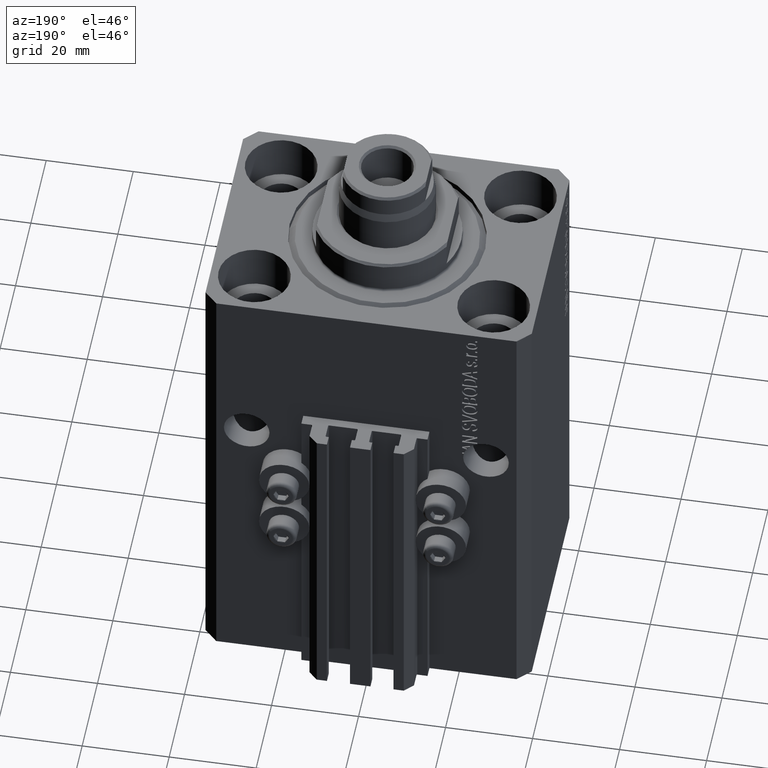
[diagram: clean part render]
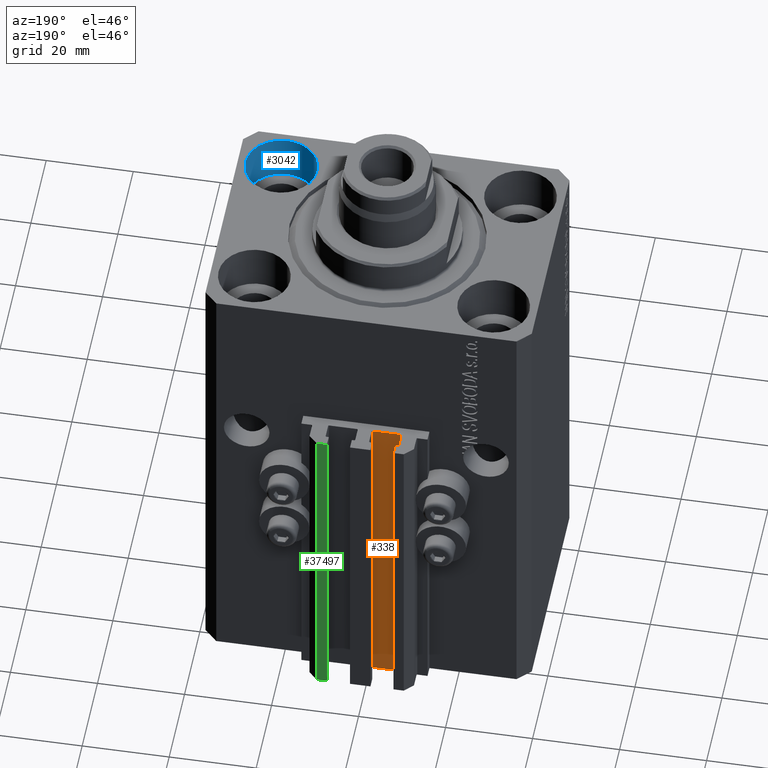
[diagram: same view with three faces highlighted in distinct colors, each labeled with its STEP entity id]
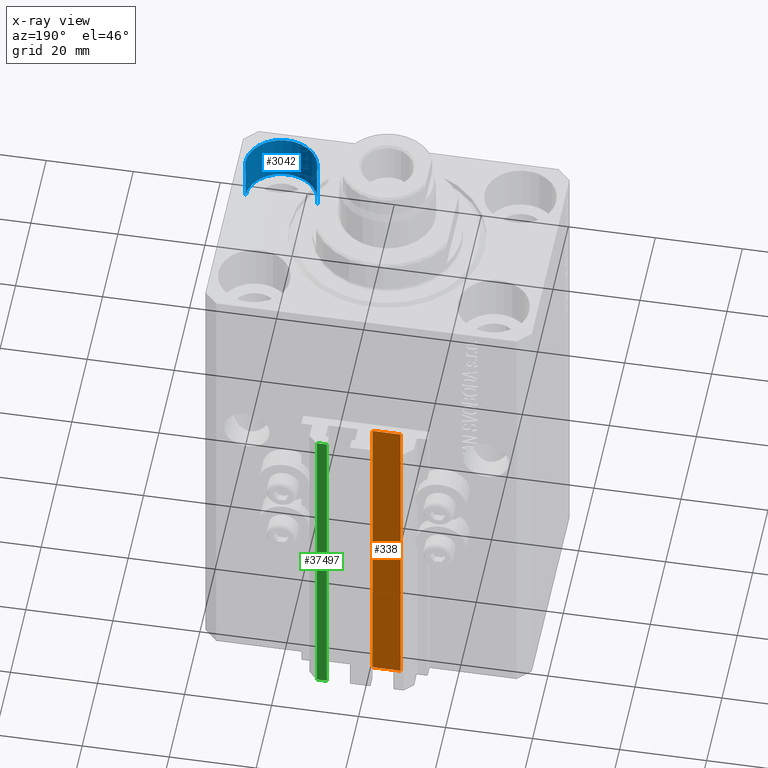
[diagram: x-ray of the same camera — body ghosted, the three highlighted faces saturated]
A machine part, auxiliary view with three faces highlighted in distinct colors.
The next image is the same camera in x-ray (body ghosted, the three faces saturated) — at least one of them is partly hidden behind the body in this view.
Their STEP definitions:

[orange] entity #338 — the highlighted planar face has unit normal (0, 1, 0).
#338 = ADVANCED_FACE ( 'NONE', ( #1535 ), #40139, .T. ) ;
#1535 = FACE_OUTER_BOUND ( 'NONE', #5624, .T. ) ;
#4808 = DIRECTION ( 'NONE',  ( 0.000000000000000000, 1.000000000000000000, -0.000000000000000000 ) ) ;
#5077 = LINE ( 'NONE', #29418, #14902 ) ;
#5624 = EDGE_LOOP ( 'NONE', ( #32639, #35840, #10059, #14779 ) ) ;
#9288 = CARTESIAN_POINT ( 'NONE',  ( -1.800000000000000933, 29.50000000000000355, -33.00000000000000000 ) ) ;
#9408 = EDGE_CURVE ( 'NONE', #42346, #24920, #41859, .T. ) ;
#10059 = ORIENTED_EDGE ( 'NONE', *, *, #24231, .T. ) ;
#12967 = EDGE_CURVE ( 'NONE', #42650, #42346, #20458, .T. ) ;
#13836 = CARTESIAN_POINT ( 'NONE',  ( -1.800000000000000933, 29.50000000000000355, -110.0000000000000000 ) ) ;
#14779 = ORIENTED_EDGE ( 'NONE', *, *, #22010, .T. ) ;
#14902 = VECTOR ( 'NONE', #32943, 1000.000000000000000 ) ;
#17184 = DIRECTION ( 'NONE',  ( 0.000000000000000000, 0.000000000000000000, 1.000000000000000000 ) ) ;
#17253 = CARTESIAN_POINT ( 'NONE',  ( -1.800000000000000933, 29.50000000000000355, -33.00000000000000000 ) ) ;
#19676 = AXIS2_PLACEMENT_3D ( 'NONE', #22346, #4808, #36631 ) ;
#20458 = LINE ( 'NONE', #34760, #33464 ) ;
#22010 = EDGE_CURVE ( 'NONE', #45765, #24920, #5077, .T. ) ;
#22346 = CARTESIAN_POINT ( 'NONE',  ( -1.800000000000000933, 29.50000000000000355, -110.0000000000000000 ) ) ;
#24231 = EDGE_CURVE ( 'NONE', #42650, #45765, #36583, .T. ) ;
#24920 = VERTEX_POINT ( 'NONE', #40491 ) ;
#27042 = VECTOR ( 'NONE', #44073, 1000.000000000000000 ) ;
#29418 = CARTESIAN_POINT ( 'NONE',  ( -8.199999999999997513, 29.50000000000000355, -110.0000000000000000 ) ) ;
#30153 = CARTESIAN_POINT ( 'NONE',  ( -8.199999999999997513, 29.50000000000000355, -110.0000000000000000 ) ) ;
#32639 = ORIENTED_EDGE ( 'NONE', *, *, #9408, .F. ) ;
#32943 = DIRECTION ( 'NONE',  ( 0.000000000000000000, 0.000000000000000000, 1.000000000000000000 ) ) ;
#33464 = VECTOR ( 'NONE', #17184, 1000.000000000000000 ) ;
#34092 = VECTOR ( 'NONE', #35064, 1000.000000000000000 ) ;
#34760 = CARTESIAN_POINT ( 'NONE',  ( -1.800000000000000933, 29.50000000000000355, -110.0000000000000000 ) ) ;
#35064 = DIRECTION ( 'NONE',  ( -1.000000000000000000, 0.000000000000000000, 0.000000000000000000 ) ) ;
#35840 = ORIENTED_EDGE ( 'NONE', *, *, #12967, .F. ) ;
#36583 = LINE ( 'NONE', #37031, #27042 ) ;
#36631 = DIRECTION ( 'NONE',  ( 0.000000000000000000, 0.000000000000000000, 1.000000000000000000 ) ) ;
#37031 = CARTESIAN_POINT ( 'NONE',  ( -1.800000000000000933, 29.50000000000000355, -110.0000000000000000 ) ) ;
#40139 = PLANE ( 'NONE',  #19676 ) ;
#40491 = CARTESIAN_POINT ( 'NONE',  ( -8.199999999999997513, 29.50000000000000355, -33.00000000000000000 ) ) ;
#41859 = LINE ( 'NONE', #17253, #34092 ) ;
#42346 = VERTEX_POINT ( 'NONE', #9288 ) ;
#42650 = VERTEX_POINT ( 'NONE', #13836 ) ;
#44073 = DIRECTION ( 'NONE',  ( -1.000000000000000000, 0.000000000000000000, 0.000000000000000000 ) ) ;
#45765 = VERTEX_POINT ( 'NONE', #30153 ) ;

[blue] entity #3042 — the highlighted cylindrical surface (edge-blend (fillet) strip) has radius 8.25 mm, axis along (0, 0, 1).
#130 = VERTEX_POINT ( 'NONE', #16747 ) ;
#646 = CARTESIAN_POINT ( 'NONE',  ( 27.50000000000000355, -17.50000000000000000, -11.00000000000000000 ) ) ;
#2418 = VERTEX_POINT ( 'NONE', #20267 ) ;
#2816 = AXIS2_PLACEMENT_3D ( 'NONE', #13993, #35973, #6526 ) ;
#3042 = ADVANCED_FACE ( 'NONE', ( #7192 ), #7654, .F. ) ;
#4045 = EDGE_CURVE ( 'NONE', #39064, #2418, #4775, .T. ) ;
#4775 = CIRCLE ( 'NONE', #10741, 8.250000000000000000 ) ;
#5098 = VECTOR ( 'NONE', #16262, 1000.000000000000000 ) ;
#6526 = DIRECTION ( 'NONE',  ( 1.000000000000000000, 0.000000000000000000, 0.000000000000000000 ) ) ;
#7192 = FACE_OUTER_BOUND ( 'NONE', #34758, .T. ) ;
#7654 = CYLINDRICAL_SURFACE ( 'NONE', #24896, 8.250000000000000000 ) ;
#8370 = CARTESIAN_POINT ( 'NONE',  ( 35.75000000000000711, -17.50000000000000000, -11.00000000000000000 ) ) ;
#10741 = AXIS2_PLACEMENT_3D ( 'NONE', #24968, #25198, #36199 ) ;
#11013 = LINE ( 'NONE', #8370, #20909 ) ;
#13993 = CARTESIAN_POINT ( 'NONE',  ( 27.50000000000000355, -17.50000000000000000, 0.000000000000000000 ) ) ;
#14895 = DIRECTION ( 'NONE',  ( -0.000000000000000000, -0.000000000000000000, 1.000000000000000000 ) ) ;
#16262 = DIRECTION ( 'NONE',  ( -0.000000000000000000, -0.000000000000000000, 1.000000000000000000 ) ) ;
#16747 = CARTESIAN_POINT ( 'NONE',  ( 19.25000000000000000, -17.50000000000000000, 0.000000000000000000 ) ) ;
#17861 = EDGE_CURVE ( 'NONE', #39064, #130, #41314, .T. ) ;
#20267 = CARTESIAN_POINT ( 'NONE',  ( 35.75000000000000711, -17.50000000000000000, -11.00000000000000000 ) ) ;
#20909 = VECTOR ( 'NONE', #37124, 1000.000000000000000 ) ;
#22918 = EDGE_CURVE ( 'NONE', #2418, #34946, #11013, .T. ) ;
#24896 = AXIS2_PLACEMENT_3D ( 'NONE', #646, #14895, #25655 ) ;
#24968 = CARTESIAN_POINT ( 'NONE',  ( 27.50000000000000355, -17.50000000000000000, -11.00000000000000000 ) ) ;
#25198 = DIRECTION ( 'NONE',  ( 0.000000000000000000, 0.000000000000000000, 1.000000000000000000 ) ) ;
#25655 = DIRECTION ( 'NONE',  ( 1.000000000000000000, 0.000000000000000000, 0.000000000000000000 ) ) ;
#28460 = ORIENTED_EDGE ( 'NONE', *, *, #4045, .F. ) ;
#33130 = ORIENTED_EDGE ( 'NONE', *, *, #42122, .T. ) ;
#34675 = CARTESIAN_POINT ( 'NONE',  ( 35.75000000000000711, -17.50000000000000000, 0.000000000000000000 ) ) ;
#34758 = EDGE_LOOP ( 'NONE', ( #28460, #43508, #33130, #43413 ) ) ;
#34946 = VERTEX_POINT ( 'NONE', #34675 ) ;
#35973 = DIRECTION ( 'NONE',  ( 0.000000000000000000, 0.000000000000000000, 1.000000000000000000 ) ) ;
#36199 = DIRECTION ( 'NONE',  ( 1.000000000000000000, 0.000000000000000000, 0.000000000000000000 ) ) ;
#37124 = DIRECTION ( 'NONE',  ( -0.000000000000000000, -0.000000000000000000, 1.000000000000000000 ) ) ;
#39064 = VERTEX_POINT ( 'NONE', #40306 ) ;
#39412 = CIRCLE ( 'NONE', #2816, 8.250000000000000000 ) ;
#40306 = CARTESIAN_POINT ( 'NONE',  ( 19.25000000000000000, -17.50000000000000000, -11.00000000000000000 ) ) ;
#41314 = LINE ( 'NONE', #43740, #5098 ) ;
#42122 = EDGE_CURVE ( 'NONE', #130, #34946, #39412, .T. ) ;
#43413 = ORIENTED_EDGE ( 'NONE', *, *, #22918, .F. ) ;
#43508 = ORIENTED_EDGE ( 'NONE', *, *, #17861, .T. ) ;
#43740 = CARTESIAN_POINT ( 'NONE',  ( 19.25000000000000000, -17.50000000000000000, -11.00000000000000000 ) ) ;

[green] entity #37497 — the highlighted planar face has unit normal (0, 1, 0).
#660 = LINE ( 'NONE', #32711, #666 ) ;
#666 = VECTOR ( 'NONE', #42997, 1000.000000000000000 ) ;
#1415 = DIRECTION ( 'NONE',  ( -1.000000000000000000, 0.000000000000000000, 0.000000000000000000 ) ) ;
#1626 = CARTESIAN_POINT ( 'NONE',  ( 9.999999999999998224, 35.50000000000001421, -110.0000000000000000 ) ) ;
#2877 = VERTEX_POINT ( 'NONE', #41148 ) ;
#3898 = LINE ( 'NONE', #25651, #25654 ) ;
#4258 = CARTESIAN_POINT ( 'NONE',  ( 9.999999999999998224, 35.50000000000001421, -33.00000000000000000 ) ) ;
#4780 = EDGE_LOOP ( 'NONE', ( #20771, #39662, #34209, #40529 ) ) ;
#4998 = CARTESIAN_POINT ( 'NONE',  ( 7.649999999999998579, 35.50000000000001421, -110.0000000000000000 ) ) ;
#9513 = DIRECTION ( 'NONE',  ( 0.000000000000000000, 1.000000000000000000, -0.000000000000000000 ) ) ;
#12575 = VECTOR ( 'NONE', #25958, 1000.000000000000000 ) ;
#13487 = FACE_OUTER_BOUND ( 'NONE', #4780, .T. ) ;
#13653 = CARTESIAN_POINT ( 'NONE',  ( 7.649999999999998579, 35.50000000000001421, -33.00000000000000000 ) ) ;
#15873 = LINE ( 'NONE', #33915, #28000 ) ;
#18612 = EDGE_CURVE ( 'NONE', #2877, #35166, #26193, .T. ) ;
#18901 = EDGE_CURVE ( 'NONE', #28651, #41375, #660, .T. ) ;
#20771 = ORIENTED_EDGE ( 'NONE', *, *, #31508, .F. ) ;
#23768 = PLANE ( 'NONE',  #42292 ) ;
#25651 = CARTESIAN_POINT ( 'NONE',  ( 9.999999999999998224, 35.50000000000001421, -33.00000000000000000 ) ) ;
#25654 = VECTOR ( 'NONE', #29403, 1000.000000000000000 ) ;
#25958 = DIRECTION ( 'NONE',  ( 0.000000000000000000, 0.000000000000000000, 1.000000000000000000 ) ) ;
#26193 = LINE ( 'NONE', #1626, #12575 ) ;
#27758 = DIRECTION ( 'NONE',  ( 0.000000000000000000, 0.000000000000000000, 1.000000000000000000 ) ) ;
#28000 = VECTOR ( 'NONE', #1415, 1000.000000000000000 ) ;
#28651 = VERTEX_POINT ( 'NONE', #4998 ) ;
#29403 = DIRECTION ( 'NONE',  ( -1.000000000000000000, 0.000000000000000000, 0.000000000000000000 ) ) ;
#31508 = EDGE_CURVE ( 'NONE', #35166, #41375, #3898, .T. ) ;
#32711 = CARTESIAN_POINT ( 'NONE',  ( 7.649999999999998579, 35.50000000000001421, -110.0000000000000000 ) ) ;
#33915 = CARTESIAN_POINT ( 'NONE',  ( 9.999999999999998224, 35.50000000000001421, -110.0000000000000000 ) ) ;
#34209 = ORIENTED_EDGE ( 'NONE', *, *, #34303, .T. ) ;
#34303 = EDGE_CURVE ( 'NONE', #2877, #28651, #15873, .T. ) ;
#35166 = VERTEX_POINT ( 'NONE', #4258 ) ;
#37497 = ADVANCED_FACE ( 'NONE', ( #13487 ), #23768, .T. ) ;
#39662 = ORIENTED_EDGE ( 'NONE', *, *, #18612, .F. ) ;
#40529 = ORIENTED_EDGE ( 'NONE', *, *, #18901, .T. ) ;
#41148 = CARTESIAN_POINT ( 'NONE',  ( 9.999999999999998224, 35.50000000000001421, -110.0000000000000000 ) ) ;
#41375 = VERTEX_POINT ( 'NONE', #13653 ) ;
#42262 = CARTESIAN_POINT ( 'NONE',  ( 9.999999999999998224, 35.50000000000001421, -110.0000000000000000 ) ) ;
#42292 = AXIS2_PLACEMENT_3D ( 'NONE', #42262, #9513, #27758 ) ;
#42997 = DIRECTION ( 'NONE',  ( 0.000000000000000000, 0.000000000000000000, 1.000000000000000000 ) ) ;